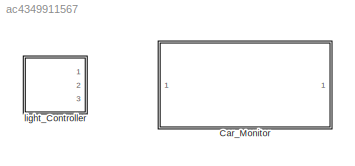
MODEL slx_ac4349911567
KIND model
CONFIG AbsTol = auto
CONFIG EnableMultiTasking = off
CONFIG FixedStep = auto
CONFIG MaxStep = auto
CONFIG MinStep = auto
CONFIG RelTol = 1e-3
CONFIG SampleTimeConstraint = Unconstrained
CONFIG Solver = VariableStepAuto
CONFIG SolverName = VariableStepAuto
CONFIG StartTime = 0.0
CONFIG StopTime = 10.0
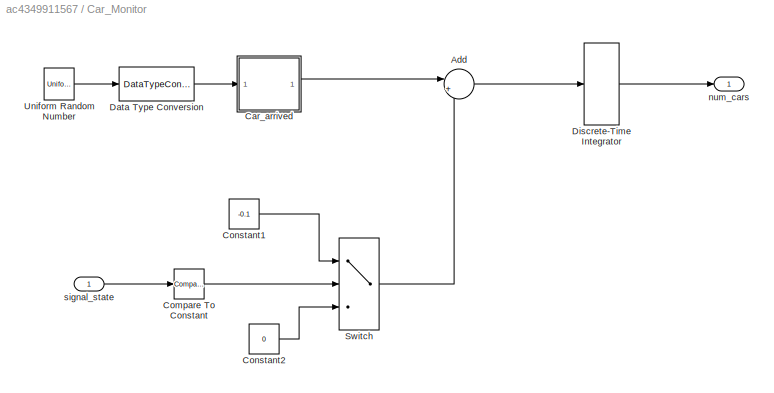
BLOCK [SubSystem] Car_Monitor
  Ports = [1, 1]
  RequestExecContextInheritance = off
BLOCK [Sum] Car_Monitor/Add
  Inputs = |++
  Ports = [2, 1]
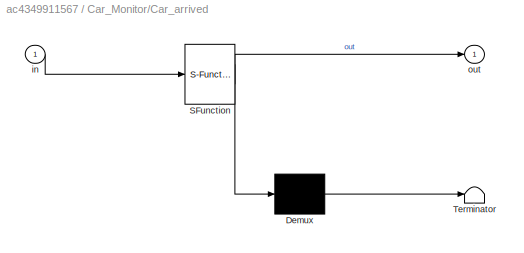
BLOCK [SubSystem] Car_Monitor/Car_arrived
  ErrorFcn = Stateflow.Translate.translate
  PermitHierarchicalResolution = ExplicitOnly
  Ports = [1, 1]
  RequestExecContextInheritance = off
  SFBlockType = Chart
  TreatAsAtomicUnit = on
BLOCK [Demux] Car_Monitor/Car_arrived/ Demux 
  Outputs = 1
  Ports = [1, 1]
BLOCK [S-Function] Car_Monitor/Car_arrived/ SFunction 
  EnableBusSupport = on
  FunctionName = sf_sfun
  PortCounts = [1 2]
  Ports = [1, 2]
  SFcnIsStateOwnerBlock = off
  SFunctionDeploymentMode = off
  Tag = Stateflow S-Function 4
BLOCK [Terminator] Car_Monitor/Car_arrived/ Terminator 
BLOCK [Inport] Car_Monitor/Car_arrived/in
BLOCK [Outport] Car_Monitor/Car_arrived/out
  VectorParamsAs1DForOutWhenUnconnected = off
BLOCK [Reference] Car_Monitor/Compare To Constant  REF=simulink/Logic and Bit
Operations/Compare
To Constant
  Ports = [1, 1]
  SourceBlock = simulink/Logic and Bit\nOperations/Compare\nTo Constant
  SourceProductBaseCode = SL
  SourceType = Compare To Constant
BLOCK [Constant] Car_Monitor/Constant1
  Value = -0.1
BLOCK [Constant] Car_Monitor/Constant2
  Value = 0
BLOCK [DataTypeConversion] Car_Monitor/Data Type Conversion
  RndMeth = Floor
  SaturateOnIntegerOverflow = off
BLOCK [DiscreteIntegrator] Car_Monitor/Discrete-Time Integrator
  ICPrevOutput = DiscIntNeverNeededParam
  ICPrevScaledInput = DiscIntNeverNeededParam
  LimitOutput = on
  LowerSaturationLimit = 0
  Ports = [1, 1]
  SampleTime = -1
BLOCK [Switch] Car_Monitor/Switch
  Criteria = u2 ~= 0
  InputSameDT = off
  SaturateOnIntegerOverflow = off
BLOCK [UniformRandomNumber] Car_Monitor/Uniform Random Number
  Maximum = 100
  Minimum = 0
  SampleTime = 0
  Seed = 177836
BLOCK [Outport] Car_Monitor/num_cars
  VectorParamsAs1DForOutWhenUnconnected = off
BLOCK [Inport] Car_Monitor/signal_state
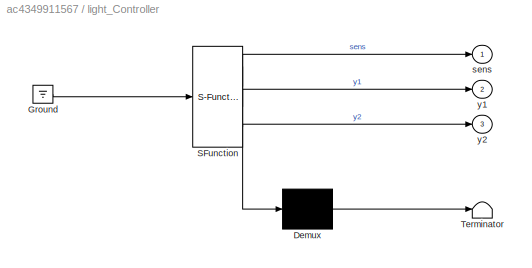
BLOCK [SubSystem] light_Controller
  ErrorFcn = Stateflow.Translate.translate
  PermitHierarchicalResolution = ExplicitOnly
  Ports = [0, 3]
  RequestExecContextInheritance = off
  SFBlockType = Chart
  TreatAsAtomicUnit = on
BLOCK [Demux] light_Controller/ Demux 
  Outputs = 1
  Ports = [1, 1]
BLOCK [Ground] light_Controller/ Ground 
BLOCK [S-Function] light_Controller/ SFunction 
  EnableBusSupport = off
  FunctionName = sf_sfun
  PortCounts = [1 4]
  Ports = [1, 4]
  SFcnIsStateOwnerBlock = off
  SFunctionDeploymentMode = off
  Tag = Stateflow S-Function 3
BLOCK [Terminator] light_Controller/ Terminator 
BLOCK [Outport] light_Controller/sens
BLOCK [Outport] light_Controller/y1
  Port = 2
BLOCK [Outport] light_Controller/y2
  Port = 3
LINE Car_Monitor/Add:1 -> Car_Monitor/Discrete-Time Integrator:1
LINE Car_Monitor/Car_arrived:1 -> Car_Monitor/Add:1
LINE Car_Monitor/Compare To Constant:1 -> Car_Monitor/Switch:2
LINE Car_Monitor/Constant1:1 -> Car_Monitor/Switch:1
LINE Car_Monitor/Constant2:1 -> Car_Monitor/Switch:3
LINE Car_Monitor/Data Type Conversion:1 -> Car_Monitor/Car_arrived:1
LINE Car_Monitor/Discrete-Time Integrator:1 -> Car_Monitor/num_cars:1
LINE Car_Monitor/Switch:1 -> Car_Monitor/Add:2
LINE Car_Monitor/Uniform Random Number:1 -> Car_Monitor/Data Type Conversion:1
LINE Car_Monitor/signal_state:1 -> Car_Monitor/Compare To Constant:1
CHART light_Controller states=5 transitions=6
  STATE_LABEL 'stop\ny1=Red;\ny2=Green;'
  STATE_LABEL 'stop_for_traffic\ny1=Red\ny2=Green;'
  STATE_LABEL 'stop_to_go\ny1=Red;\ny2=Green;'
  STATE_LABEL 'go_to_stop\ny1=Yellow;\ny2=Red;'
  STATE_LABEL 'o\ny1=Green;\ny2=Red;'
CHART Car_Monitor/Car_arrived states=0 transitions=1
CHART  states=0 transitions=0
CHART  states=0 transitions=0
